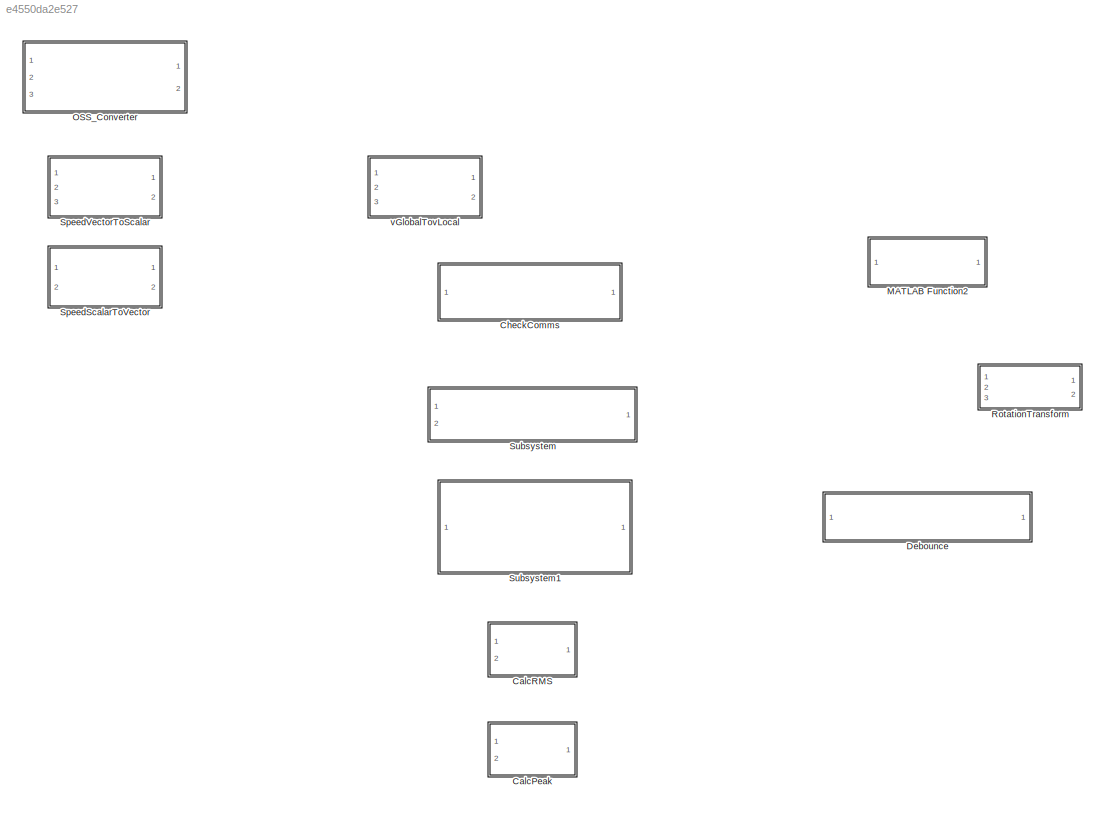
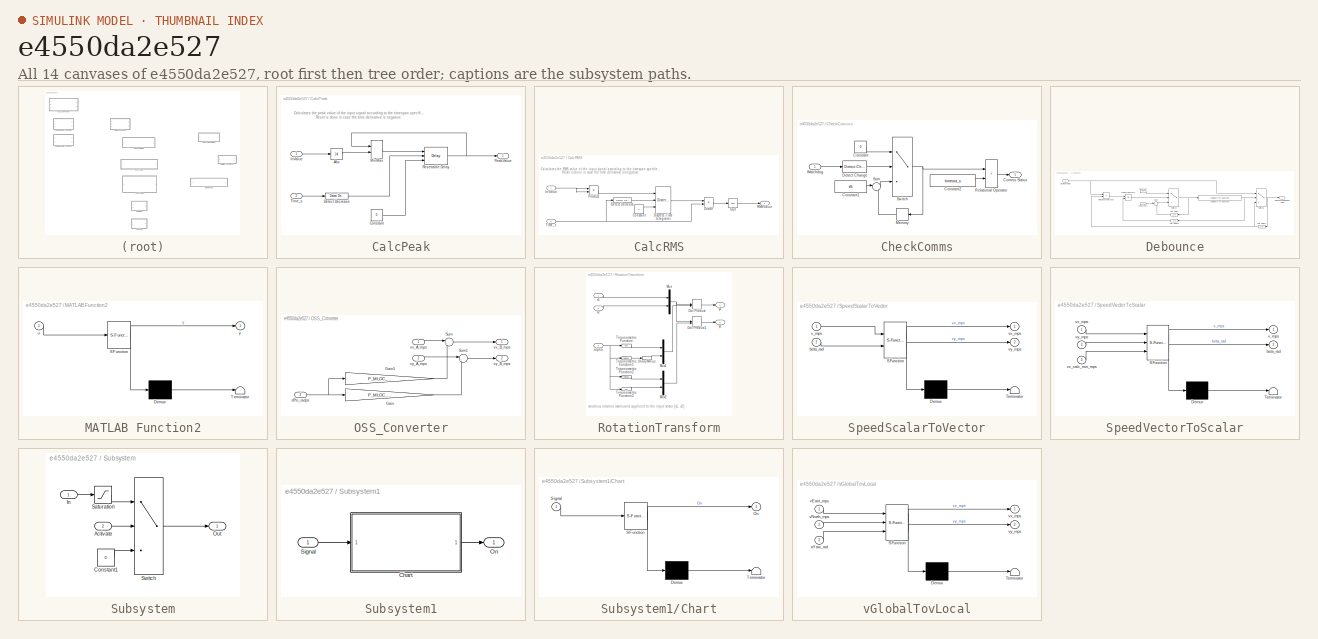
[diagram: thumbnail index - all 14 canvases of the model, root first then tree order]
MODEL slx_e4550da2e527
KIND library
CONFIG AbsTol = auto
CONFIG EnableMultiTasking = on
CONFIG FixedStep = auto
CONFIG MaxStep = auto
CONFIG MinStep = auto
CONFIG RelTol = 1e-3
CONFIG SampleTimeConstraint = Unconstrained
CONFIG Solver = VariableStepAuto
CONFIG SolverName = VariableStepAuto
CONFIG StartTime = 0.0
CONFIG StopTime = 10.0
BLOCK [SubSystem] CalcPeak
  Ports = [2, 1]
  RequestExecContextInheritance = off
BLOCK [Abs] CalcPeak/Abs
  SaturateOnIntegerOverflow = off
BLOCK [Constant] CalcPeak/Constant
  Value = 0
BLOCK [Reference] CalcPeak/Detect Decrease  REF=simulink/Logic and Bit
Operations/Detect
Decrease
  Ports = [1, 1]
  SourceBlock = simulink/Logic and Bit\nOperations/Detect\nDecrease
  SourceProductBaseCode = SL
  SourceProductName = Simulink
  SourceType = Detect Decrease
BLOCK [Inport] CalcPeak/InValue
  IconDisplay = Port number
BLOCK [MinMax] CalcPeak/MinMax
  Function = max
  InputSameDT = off
  Inputs = 2
  Ports = [2, 1]
  SaturateOnIntegerOverflow = off
BLOCK [Outport] CalcPeak/PeakValue
  IconDisplay = Port number
BLOCK [Delay] CalcPeak/Resettable Delay
  DelayLength = 1
  ExternalReset = Rising
  InitialConditionSource = Input port
  InputPortMap = u0,r5,p4
  Ports = [3, 1]
BLOCK [Inport] CalcPeak/Time_s
  IconDisplay = Port number
  Port = 2
BLOCK [SubSystem] CalcRMS
  Ports = [2, 1]
  RequestExecContextInheritance = off
BLOCK [Constant] CalcRMS/Constant
  Value = 0
BLOCK [Reference] CalcRMS/Detect Decrease  REF=simulink/Logic and Bit
Operations/Detect
Decrease
  Ports = [1, 1]
  SourceBlock = simulink/Logic and Bit\nOperations/Detect\nDecrease
  SourceProductBaseCode = SL
  SourceProductName = Simulink
  SourceType = Detect Decrease
BLOCK [DiscreteIntegrator] CalcRMS/Discrete-Time Integrator
  ExternalReset = rising
  ICPrevOutput = DiscIntNeverNeededParam
  ICPrevScaledInput = DiscIntNeverNeededParam
  InitialConditionSetting = Auto
  InitialConditionSource = external
  Ports = [3, 1]
  SampleTime = -1
BLOCK [Product] CalcRMS/Divide
  InputSameDT = off
  Inputs = */
  OutDataTypeStr = Inherit: Inherit via internal rule
  Ports = [2, 1]
  RndMeth = Floor
  SaturateOnIntegerOverflow = off
BLOCK [Inport] CalcRMS/InValue
  IconDisplay = Port number
BLOCK [Product] CalcRMS/Product
  InputSameDT = off
  OutDataTypeStr = Inherit: Inherit via internal rule
  Ports = [2, 1]
  RndMeth = Floor
  SaturateOnIntegerOverflow = off
BLOCK [Outport] CalcRMS/RMSValue
  IconDisplay = Port number
BLOCK [Sqrt] CalcRMS/Sqrt
BLOCK [Inport] CalcRMS/Time_s
  IconDisplay = Port number
  Port = 2
BLOCK [SubSystem] CheckComms
  Ports = [1, 1]
  RequestExecContextInheritance = off
BLOCK [Outport] CheckComms/Comms Status
  IconDisplay = Port number
BLOCK [Constant] CheckComms/Constant
  Value = 0
BLOCK [Constant] CheckComms/Constant1
  Value = tS
BLOCK [Constant] CheckComms/Constant2
  Value = timeout_s
BLOCK [Reference] CheckComms/Detect Change  REF=simulink/Logic and Bit
Operations/Detect
Change
  Ports = [1, 1]
  SourceBlock = simulink/Logic and Bit\nOperations/Detect\nChange
  SourceProductBaseCode = SL
  SourceProductName = Simulink
  SourceType = Detect Change
BLOCK [Memory] CheckComms/Memory
  InheritSampleTime = on
  InitialCondition = tPX2CommsTimeout
BLOCK [RelationalOperator] CheckComms/Relational Operator
  InputSameDT = off
  Operator = <
  OutDataTypeStr = boolean
  Ports = [2, 1]
BLOCK [Sum] CheckComms/Sum
  IconShape = round
  InputSameDT = off
  Inputs = |++
  OutDataTypeStr = Inherit: Inherit via internal rule
  Ports = [2, 1]
  SaturateOnIntegerOverflow = off
BLOCK [Switch] CheckComms/Switch
  Criteria = u2 ~= 0
  InputSameDT = off
  SaturateOnIntegerOverflow = off
BLOCK [Inport] CheckComms/Watchdog
  IconDisplay = Port number
BLOCK [SubSystem] Debounce
  Ports = [1, 1]
  RequestExecContextInheritance = off
BLOCK [Inport] Debounce/BooleanValue
  IconDisplay = Port number
  OutDataTypeStr = boolean
BLOCK [Reference] Debounce/Compare To Constant  REF=simulink/Logic and Bit
Operations/Compare
To Constant
  Ports = [1, 1]
  SourceBlock = simulink/Logic and Bit\nOperations/Compare\nTo Constant
  SourceProductBaseCode = SL
  SourceProductName = Simulink
  SourceType = Compare To Constant
BLOCK [Constant] Debounce/Constant
  Value = 0
BLOCK [Constant] Debounce/Constant1
BLOCK [Outport] Debounce/DebouncedBooleanValue
  IconDisplay = Port number
  OutDataTypeStr = boolean
BLOCK [Logic] Debounce/Logical Operator
  AllPortsSameDT = off
  Operator = OR
  OutDataTypeStr = boolean
  Ports = [2, 1]
BLOCK [RelationalOperator] Debounce/Relational Operator
  InputSameDT = off
  Operator = ==
  OutDataTypeStr = boolean
  Ports = [2, 1]
BLOCK [Sum] Debounce/Sum
  IconShape = round
  InputSameDT = off
  Inputs = |++
  OutDataTypeStr = Inherit: Inherit via internal rule
  Ports = [2, 1]
  SaturateOnIntegerOverflow = off
BLOCK [Switch] Debounce/Switch
  Criteria = u2 ~= 0
  InputSameDT = off
  SaturateOnIntegerOverflow = off
BLOCK [Switch] Debounce/Switch1
  Criteria = u2 ~= 0
  InputSameDT = off
  SaturateOnIntegerOverflow = off
BLOCK [UnitDelay] Debounce/Unit Delay
  InputProcessing = Elements as channels (sample based)
  SampleTime = -1
BLOCK [UnitDelay] Debounce/Unit Delay1
  InputProcessing = Elements as channels (sample based)
  SampleTime = -1
BLOCK [UnitDelay] Debounce/Unit Delay2
  InputProcessing = Elements as channels (sample based)
  SampleTime = -1
BLOCK [SubSystem] MATLAB Function2
  ErrorFcn = Stateflow.Translate.translate
  PermitHierarchicalResolution = ExplicitOnly
  Ports = [1, 1]
  RequestExecContextInheritance = off
  SFBlockType = MATLAB Function
  TreatAsAtomicUnit = on
BLOCK [Demux] MATLAB Function2/ Demux 
  Outputs = 1
  Ports = [1, 1]
BLOCK [S-Function] MATLAB Function2/ SFunction 
  EnableBusSupport = off
  FunctionName = sf_sfun
  PortCounts = [1 2]
  Ports = [1, 2]
  SFcnIsStateOwnerBlock = off
  SFunctionDeploymentMode = off
  Tag = Stateflow S-Function rr_general 7
BLOCK [Terminator] MATLAB Function2/ Terminator 
BLOCK [Inport] MATLAB Function2/u
  IconDisplay = Port number
BLOCK [Outport] MATLAB Function2/y
  IconDisplay = Port number
BLOCK [SubSystem] OSS_Converter
  Ports = [3, 2]
  RequestExecContextInheritance = off
BLOCK [Gain] OSS_Converter/Gain
  Gain = P_MLOC_OSS_FrontX
  OutDataTypeStr = Inherit: Inherit via internal rule
  ParamDataTypeStr = Inherit: Inherit via internal rule
  SaturateOnIntegerOverflow = off
BLOCK [Gain] OSS_Converter/Gain1
  Gain = P_MLOC_OSS_FrontY
  OutDataTypeStr = Inherit: Inherit via internal rule
  ParamDataTypeStr = Inherit: Inherit via internal rule
  SaturateOnIntegerOverflow = off
BLOCK [Sum] OSS_Converter/Sum
  IconShape = round
  InputSameDT = off
  Inputs = |++
  OutDataTypeStr = Inherit: Inherit via internal rule
  Ports = [2, 1]
  SaturateOnIntegerOverflow = off
BLOCK [Sum] OSS_Converter/Sum1
  IconShape = round
  InputSameDT = off
  Inputs = |+-
  OutDataTypeStr = Inherit: Inherit via internal rule
  Ports = [2, 1]
  SaturateOnIntegerOverflow = off
BLOCK [Inport] OSS_Converter/dPsi_radps
  IconDisplay = Port number
  Port = 3
BLOCK [Inport] OSS_Converter/vx_A_mps
  IconDisplay = Port number
BLOCK [Outport] OSS_Converter/vx_B_mps
  IconDisplay = Port number
BLOCK [Inport] OSS_Converter/vy_A_mps
  IconDisplay = Port number
  Port = 2
BLOCK [Outport] OSS_Converter/vy_B_mps
  IconDisplay = Port number
  Port = 2
BLOCK [SubSystem] RotationTransform
  Ports = [3, 2]
  RequestExecContextInheritance = off
BLOCK [DotProduct] RotationTransform/Dot Product
  OutDataTypeStr = Inherit: Inherit via internal rule
BLOCK [DotProduct] RotationTransform/Dot Product1
  OutDataTypeStr = Inherit: Inherit via internal rule
BLOCK [Mux] RotationTransform/Mux
  DisplayOption = bar
  Inputs = 2
  Ports = [2, 1]
BLOCK [Mux] RotationTransform/Mux1
  DisplayOption = bar
  Inputs = 2
  Ports = [2, 1]
BLOCK [Mux] RotationTransform/Mux2
  DisplayOption = bar
  Inputs = 2
  Ports = [2, 1]
BLOCK [Trigonometry] RotationTransform/Trigonometric Function
  Operator = cos
  Ports = [1, 1]
BLOCK [Trigonometry] RotationTransform/Trigonometric Function1
  Ports = [1, 1]
BLOCK [Trigonometry] RotationTransform/Trigonometric Function2
  Ports = [1, 1]
BLOCK [Trigonometry] RotationTransform/Trigonometric Function3
  Operator = cos
  Ports = [1, 1]
BLOCK [UnaryMinus] RotationTransform/Unary Minus
BLOCK [Inport] RotationTransform/alpha
  IconDisplay = Port number
  Port = 3
BLOCK [Inport] RotationTransform/x1
  IconDisplay = Port number
BLOCK [Inport] RotationTransform/x2
  IconDisplay = Port number
  Port = 2
BLOCK [Outport] RotationTransform/y1
  IconDisplay = Port number
BLOCK [Outport] RotationTransform/y2
  IconDisplay = Port number
  Port = 2
BLOCK [SubSystem] SpeedScalarToVector
  ErrorFcn = Stateflow.Translate.translate
  PermitHierarchicalResolution = ExplicitOnly
  Ports = [2, 2]
  RequestExecContextInheritance = off
  SFBlockType = MATLAB Function
  TreatAsAtomicUnit = on
BLOCK [Demux] SpeedScalarToVector/ Demux 
  Outputs = 1
  Ports = [1, 1]
BLOCK [S-Function] SpeedScalarToVector/ SFunction 
  EnableBusSupport = off
  FunctionName = sf_sfun
  PortCounts = [2 3]
  Ports = [2, 3]
  SFcnIsStateOwnerBlock = off
  SFunctionDeploymentMode = off
  Tag = Stateflow S-Function rr_general 1
BLOCK [Terminator] SpeedScalarToVector/ Terminator 
BLOCK [Inport] SpeedScalarToVector/beta_rad
  IconDisplay = Port number
  Port = 2
BLOCK [Inport] SpeedScalarToVector/v_mps
  IconDisplay = Port number
BLOCK [Outport] SpeedScalarToVector/vx_mps
  IconDisplay = Port number
BLOCK [Outport] SpeedScalarToVector/vy_mps
  IconDisplay = Port number
  Port = 2
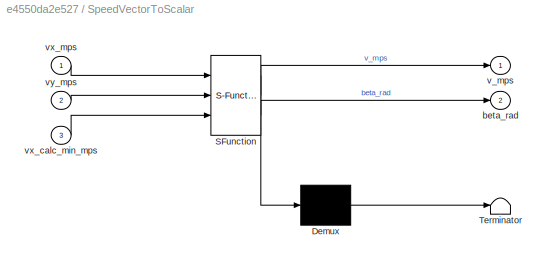
BLOCK [SubSystem] SpeedVectorToScalar
  ErrorFcn = Stateflow.Translate.translate
  PermitHierarchicalResolution = ExplicitOnly
  Ports = [3, 2]
  RequestExecContextInheritance = off
  SFBlockType = MATLAB Function
  TreatAsAtomicUnit = on
BLOCK [Demux] SpeedVectorToScalar/ Demux 
  Outputs = 1
  Ports = [1, 1]
BLOCK [S-Function] SpeedVectorToScalar/ SFunction 
  EnableBusSupport = off
  FunctionName = sf_sfun
  PortCounts = [3 3]
  Ports = [3, 3]
  SFcnIsStateOwnerBlock = off
  SFunctionDeploymentMode = off
  Tag = Stateflow S-Function rr_general 4
BLOCK [Terminator] SpeedVectorToScalar/ Terminator 
BLOCK [Outport] SpeedVectorToScalar/beta_rad
  IconDisplay = Port number
  Port = 2
BLOCK [Outport] SpeedVectorToScalar/v_mps
  IconDisplay = Port number
BLOCK [Inport] SpeedVectorToScalar/vx_calc_min_mps
  IconDisplay = Port number
  Port = 3
BLOCK [Inport] SpeedVectorToScalar/vx_mps
  IconDisplay = Port number
BLOCK [Inport] SpeedVectorToScalar/vy_mps
  IconDisplay = Port number
  Port = 2
BLOCK [SubSystem] Subsystem
  Ports = [2, 1]
  RequestExecContextInheritance = off
BLOCK [Inport] Subsystem/Activate
  IconDisplay = Port number
  OutDataTypeStr = boolean
  Port = 2
BLOCK [Constant] Subsystem/Constant1
  Value = 0
BLOCK [Inport] Subsystem/In
  IconDisplay = Port number
BLOCK [Outport] Subsystem/Out
  IconDisplay = Port number
BLOCK [Saturate] Subsystem/Saturation
  InputPortMap = u0
  LowerLimit = LowerLimit
  Ports = [1, 1]
  UpperLimit = UpperLimit
BLOCK [Switch] Subsystem/Switch
  Criteria = u2 > Threshold
  InputSameDT = off
  SaturateOnIntegerOverflow = off
BLOCK [SubSystem] Subsystem1
  Ports = [1, 1]
  RequestExecContextInheritance = off
BLOCK [SubSystem] Subsystem1/Chart
  ErrorFcn = Stateflow.Translate.translate
  PermitHierarchicalResolution = ExplicitOnly
  Ports = [1, 1]
  RequestExecContextInheritance = off
  SFBlockType = Chart
  TreatAsAtomicUnit = on
BLOCK [Demux] Subsystem1/Chart/ Demux 
  Outputs = 1
  Ports = [1, 1]
BLOCK [S-Function] Subsystem1/Chart/ SFunction 
  EnableBusSupport = off
  FunctionName = sf_sfun
  Parameters = Threshold,waitTime
  PortCounts = [1 2]
  Ports = [1, 2]
  SFcnIsStateOwnerBlock = off
  SFunctionDeploymentMode = off
  Tag = Stateflow S-Function rr_general 5
BLOCK [Terminator] Subsystem1/Chart/ Terminator 
BLOCK [Outport] Subsystem1/Chart/On
  IconDisplay = Port number
BLOCK [Inport] Subsystem1/Chart/Signal
  IconDisplay = Port number
BLOCK [Outport] Subsystem1/On
  IconDisplay = Port number
BLOCK [Inport] Subsystem1/Signal
  IconDisplay = Port number
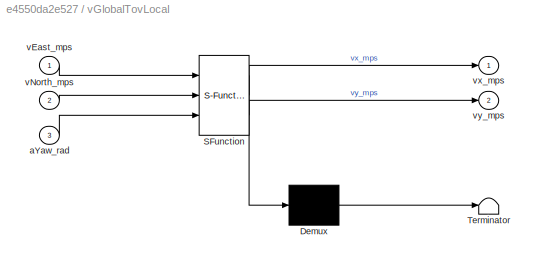
BLOCK [SubSystem] vGlobalTovLocal
  ErrorFcn = Stateflow.Translate.translate
  PermitHierarchicalResolution = ExplicitOnly
  Ports = [3, 2]
  RequestExecContextInheritance = off
  SFBlockType = MATLAB Function
  TreatAsAtomicUnit = on
BLOCK [Demux] vGlobalTovLocal/ Demux 
  Outputs = 1
  Ports = [1, 1]
BLOCK [S-Function] vGlobalTovLocal/ SFunction 
  EnableBusSupport = off
  FunctionName = sf_sfun
  PortCounts = [3 3]
  Ports = [3, 3]
  SFcnIsStateOwnerBlock = off
  SFunctionDeploymentMode = off
  Tag = Stateflow S-Function rr_general 6
BLOCK [Terminator] vGlobalTovLocal/ Terminator 
BLOCK [Inport] vGlobalTovLocal/aYaw_rad
  IconDisplay = Port number
  Port = 3
BLOCK [Inport] vGlobalTovLocal/vEast_mps
  IconDisplay = Port number
BLOCK [Inport] vGlobalTovLocal/vNorth_mps
  IconDisplay = Port number
  Port = 2
BLOCK [Outport] vGlobalTovLocal/vx_mps
  IconDisplay = Port number
BLOCK [Outport] vGlobalTovLocal/vy_mps
  IconDisplay = Port number
  Port = 2
ANNOTATION CalcPeak: Calculates the peak value of the input signal according to the timespan specified by Time. Reset is done in case the time derivative is negative.
ANNOTATION CalcRMS: Calculates the RMS value of the input signal according to the timespan specified by Time. Reset is done in case the time derivative is negative.
ANNOTATION RotationTransform: creates a rotation matrix and applies it to the input vector [x1, x2]
LINE CalcPeak/Abs:1 -> CalcPeak/MinMax:2
LINE CalcPeak/Constant:1 -> CalcPeak/Resettable Delay:3
LINE CalcPeak/Detect Decrease:1 -> CalcPeak/Resettable Delay:2
LINE CalcPeak/InValue:1 -> CalcPeak/Abs:1
LINE CalcPeak/MinMax:1 -> CalcPeak/Resettable Delay:1
NET CalcPeak/Resettable Delay:1 -> CalcPeak/MinMax:1, CalcPeak/PeakValue:1
LINE CalcPeak/Time_s:1 -> CalcPeak/Detect Decrease:1
LINE CalcRMS/Constant:1 -> CalcRMS/Discrete-Time Integrator:3
LINE CalcRMS/Detect Decrease:1 -> CalcRMS/Discrete-Time Integrator:2
LINE CalcRMS/Discrete-Time Integrator:1 -> CalcRMS/Divide:1
LINE CalcRMS/Divide:1 -> CalcRMS/Sqrt:1
NET CalcRMS/InValue:1 -> CalcRMS/Product:1, CalcRMS/Product:2
LINE CalcRMS/Product:1 -> CalcRMS/Discrete-Time Integrator:1
LINE CalcRMS/Sqrt:1 -> CalcRMS/RMSValue:1
NET CalcRMS/Time_s:1 -> CalcRMS/Detect Decrease:1, CalcRMS/Divide:2
LINE CheckComms/Constant1:1 -> CheckComms/Sum:1
LINE CheckComms/Constant2:1 -> CheckComms/Relational Operator:2
LINE CheckComms/Constant:1 -> CheckComms/Switch:1
LINE CheckComms/Detect Change:1 -> CheckComms/Switch:2
LINE CheckComms/Memory:1 -> CheckComms/Sum:2
LINE CheckComms/Relational Operator:1 -> CheckComms/Comms Status:1
LINE CheckComms/Sum:1 -> CheckComms/Switch:3
NET CheckComms/Switch:1 -> CheckComms/Memory:1, CheckComms/Relational Operator:1
LINE CheckComms/Watchdog:1 -> CheckComms/Detect Change:1
NET Debounce/BooleanValue:1 -> Debounce/Relational Operator:1, Debounce/Switch1:1
NET Debounce/Compare To Constant:1 -> Debounce/Switch1:2, Debounce/Unit Delay2:1
LINE Debounce/Constant1:1 -> Debounce/Sum:1
LINE Debounce/Constant:1 -> Debounce/Switch:1
LINE Debounce/Logical Operator:1 -> Debounce/Switch:2
LINE Debounce/Relational Operator:1 -> Debounce/Logical Operator:1
LINE Debounce/Sum:1 -> Debounce/Switch:3
NET Debounce/Switch1:1 -> Debounce/DebouncedBooleanValue:1, Debounce/Unit Delay1:1
NET Debounce/Switch:1 -> Debounce/Compare To Constant:1, Debounce/Unit Delay:1
NET Debounce/Unit Delay1:1 -> Debounce/Relational Operator:2, Debounce/Switch1:3
LINE Debounce/Unit Delay2:1 -> Debounce/Logical Operator:2
LINE Debounce/Unit Delay:1 -> Debounce/Sum:2
LINE OSS_Converter/Gain1:1 -> OSS_Converter/Sum:2
LINE OSS_Converter/Gain:1 -> OSS_Converter/Sum1:2
LINE OSS_Converter/Sum1:1 -> OSS_Converter/vy_B_mps:1
LINE OSS_Converter/Sum:1 -> OSS_Converter/vx_B_mps:1
NET OSS_Converter/dPsi_radps:1 -> OSS_Converter/Gain1:1, OSS_Converter/Gain:1
LINE OSS_Converter/vx_A_mps:1 -> OSS_Converter/Sum:1
LINE OSS_Converter/vy_A_mps:1 -> OSS_Converter/Sum1:1
LINE RotationTransform/Dot Product1:1 -> RotationTransform/y2:1
LINE RotationTransform/Dot Product:1 -> RotationTransform/y1:1
LINE RotationTransform/Mux1:1 -> RotationTransform/Dot Product:2
LINE RotationTransform/Mux2:1 -> RotationTransform/Dot Product1:2
NET RotationTransform/Mux:1 -> RotationTransform/Dot Product1:1, RotationTransform/Dot Product:1
LINE RotationTransform/Trigonometric Function1:1 -> RotationTransform/Unary Minus:1
LINE RotationTransform/Trigonometric Function2:1 -> RotationTransform/Mux2:1
LINE RotationTransform/Trigonometric Function3:1 -> RotationTransform/Mux2:2
LINE RotationTransform/Trigonometric Function:1 -> RotationTransform/Mux1:1
LINE RotationTransform/Unary Minus:1 -> RotationTransform/Mux1:2
NET RotationTransform/alpha:1 -> RotationTransform/Trigonometric Function1:1, RotationTransform/Trigonometric Function2:1, RotationTransform/Trigonometric Function3:1, RotationTransform/Trigonometric Function:1
LINE RotationTransform/x1:1 -> RotationTransform/Mux:1
LINE RotationTransform/x2:1 -> RotationTransform/Mux:2
LINE Subsystem/Activate:1 -> Subsystem/Switch:2
LINE Subsystem/Constant1:1 -> Subsystem/Switch:3
LINE Subsystem/In:1 -> Subsystem/Saturation:1
LINE Subsystem/Saturation:1 -> Subsystem/Switch:1
LINE Subsystem/Switch:1 -> Subsystem/Out:1
LINE Subsystem1/Chart:1 -> Subsystem1/On:1
LINE Subsystem1/Signal:1 -> Subsystem1/Chart:1
note: NET lines group one-source signal fan-out (src -> all destinations, sorted); 1:1 wires keep LINE
CHART SpeedScalarToVector states=1 transitions=1
  STATE_LABEL 'eML_blk_kernel()'
  STATE_LABEL 'SCRIPT:\nfunction [vx_mps, vy_mps] = fcn(v_mps, beta_rad)\n\n[vx_mps, vy_mps] = vbeta2vxvy(v_mps, beta_rad); \n\nend'
CHART SpeedVectorToScalar states=1 transitions=1
  STATE_LABEL 'eML_blk_kernel()'
  STATE_LABEL 'SCRIPT:\nfunction [v_mps, beta_rad] = fcn(vx_mps, vy_mps, vx_calc_min_mps)\n\n[v_mps, beta_rad] = vxvy2vbeta(vx_mps, vy_mps, vx_calc_min_mps); \n\nend'
CHART Subsystem1/Chart states=4 transitions=5
  STATE_LABEL 'WaitForCondition\nentry: On = false;'
  STATE_LABEL 'ConditionTrue'
  STATE_LABEL 'wait'
  STATE_LABEL 'ActivateOutput\nentry:\nOn = true;'
  STATE_LABEL 'after(waitTime, sec)'
  STATE_LABEL 'wait'
  STATE_LABEL 'ActivateOutput\nentry:\nOn = true;'
CHART vGlobalTovLocal states=1 transitions=1
  STATE_LABEL 'eML_blk_kernel()'
  STATE_LABEL 'SCRIPT:\nfunction [vx_mps, vy_mps] = fcn(vEast_mps, vNorth_mps, aYaw_rad)\n\n  [vx_mps, vy_mps] = vGlobal2vLocal(vEast_mps, vNorth_mps, aYaw_rad);\n\nend'
CHART MATLAB Function2 states=1 transitions=1
  STATE_LABEL 'eML_blk_kernel()'
  STATE_LABEL 'SCRIPT:\nfunction y = normalizeAngle(u)\n\ny = normalizeAngle(u);\n'
